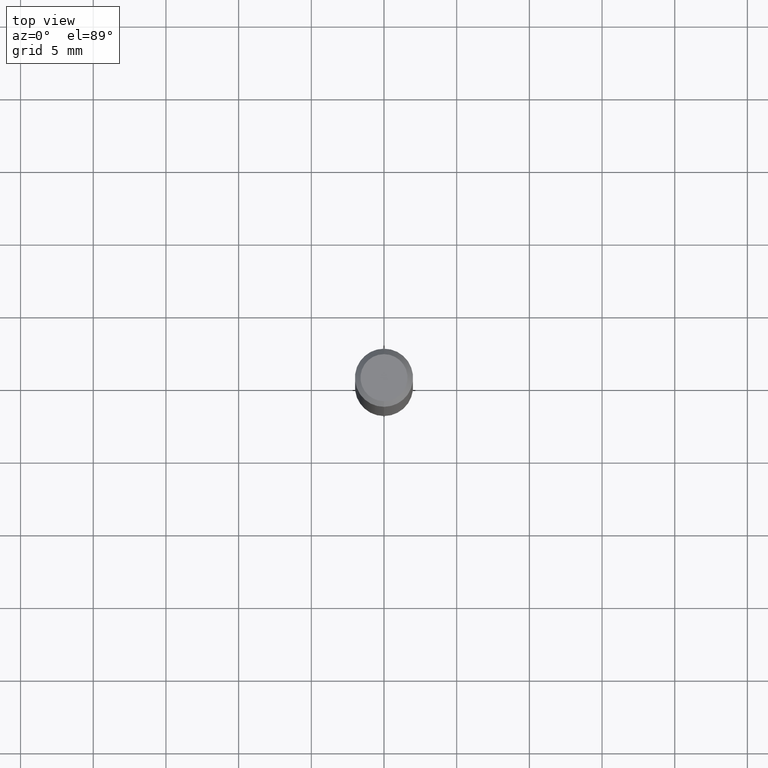
[diagram: clean part render]
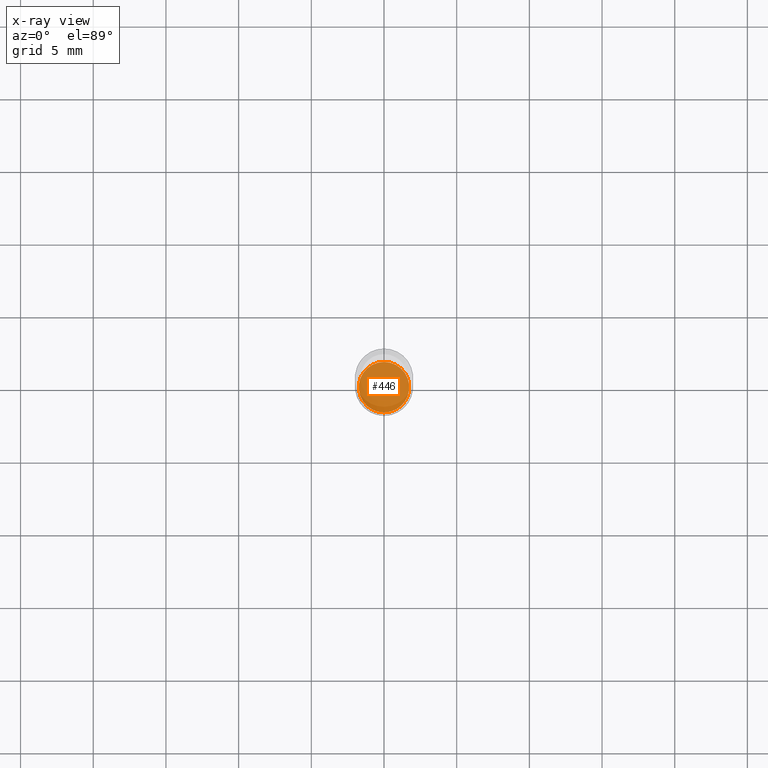
[diagram: x-ray — body ghosted, one internal face saturated and labeled with its STEP entity id]
A machine part, top view, then the same camera in x-ray: the body is ghosted and one INTERNAL B-rep face — a face not visible from any outside direction — is saturated and labeled: STEP entity #446.
In plain terms, the highlighted planar face has unit normal (-0, 0, 1).
Its self-contained STEP definition (entity closure, byte-faithful):
#39 = DIRECTION ( 'NONE',  ( -2.445433841803367243E-29, 3.491531409827887808E-15, 1.000000000000000000 ) ) ;
#42 = FACE_OUTER_BOUND ( 'NONE', #101, .T. ) ;
#58 = DIRECTION ( 'NONE',  ( -6.982962677686266711E-15, -1.000000000000000000, 3.993929815298627073E-15 ) ) ;
#60 = ORIENTED_EDGE ( 'NONE', *, *, #265, .F. ) ;
#61 = CIRCLE ( 'NONE', #344, 0.06840000000000005798 ) ;
#74 = CARTESIAN_POINT ( 'NONE',  ( -4.776346471537044438E-16, -0.06840000000000528990, -1.496099999999999541 ) ) ;
#101 = EDGE_LOOP ( 'NONE', ( #216, #60 ) ) ;
#150 = CARTESIAN_POINT ( 'NONE',  ( 3.658613570722017604E-29, -5.223680142243502750E-15, -1.496099999999999985 ) ) ;
#153 = DIRECTION ( 'NONE',  ( -6.982962677686266711E-15, -1.000000000000000000, 3.993929815298627073E-15 ) ) ;
#161 = AXIS2_PLACEMENT_3D ( 'NONE', #406, #39, #218 ) ;
#216 = ORIENTED_EDGE ( 'NONE', *, *, #324, .F. ) ;
#218 = DIRECTION ( 'NONE',  ( -6.982962677686265922E-15, -1.000000000000000000, 3.491531409827887808E-15 ) ) ;
#265 = EDGE_CURVE ( 'NONE', #394, #369, #61, .T. ) ;
#266 = DIRECTION ( 'NONE',  ( -2.445433841803367524E-29, 3.491531409827887808E-15, 1.000000000000000000 ) ) ;
#323 = CARTESIAN_POINT ( 'NONE',  ( 4.877875880993454787E-16, 0.06839999999999483993, -1.496100000000000207 ) ) ;
#324 = EDGE_CURVE ( 'NONE', #369, #394, #398, .T. ) ;
#344 = AXIS2_PLACEMENT_3D ( 'NONE', #349, #500, #153 ) ;
#349 = CARTESIAN_POINT ( 'NONE',  ( 3.658613570722017604E-29, -5.223680142243502750E-15, -1.496099999999999985 ) ) ;
#369 = VERTEX_POINT ( 'NONE', #74 ) ;
#373 = AXIS2_PLACEMENT_3D ( 'NONE', #150, #266, #58 ) ;
#394 = VERTEX_POINT ( 'NONE', #323 ) ;
#398 = CIRCLE ( 'NONE', #373, 0.06840000000000005798 ) ;
#406 = CARTESIAN_POINT ( 'NONE',  ( 3.658613570722017604E-29, -5.223680142243502750E-15, -1.496099999999999985 ) ) ;
#416 = PLANE ( 'NONE',  #161 ) ;
#446 = ADVANCED_FACE ( 'NONE', ( #42 ), #416, .F. ) ;
#500 = DIRECTION ( 'NONE',  ( -2.445433841803367524E-29, 3.491531409827887808E-15, 1.000000000000000000 ) ) ;